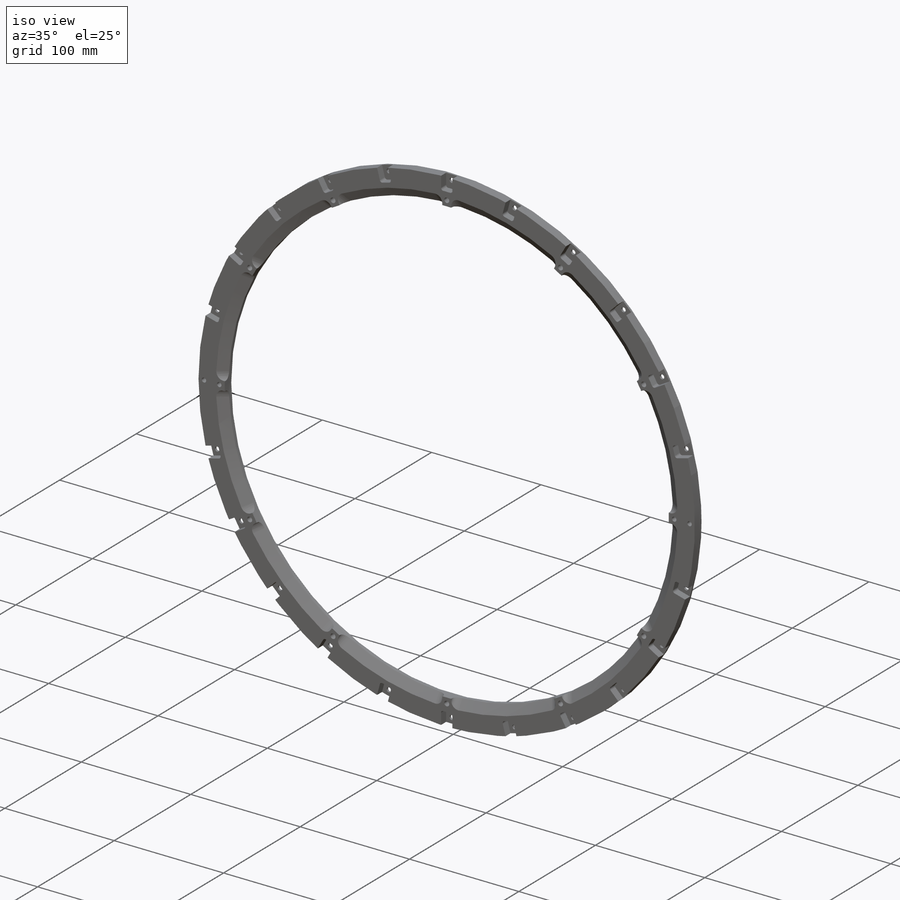
[diagram: iso view]
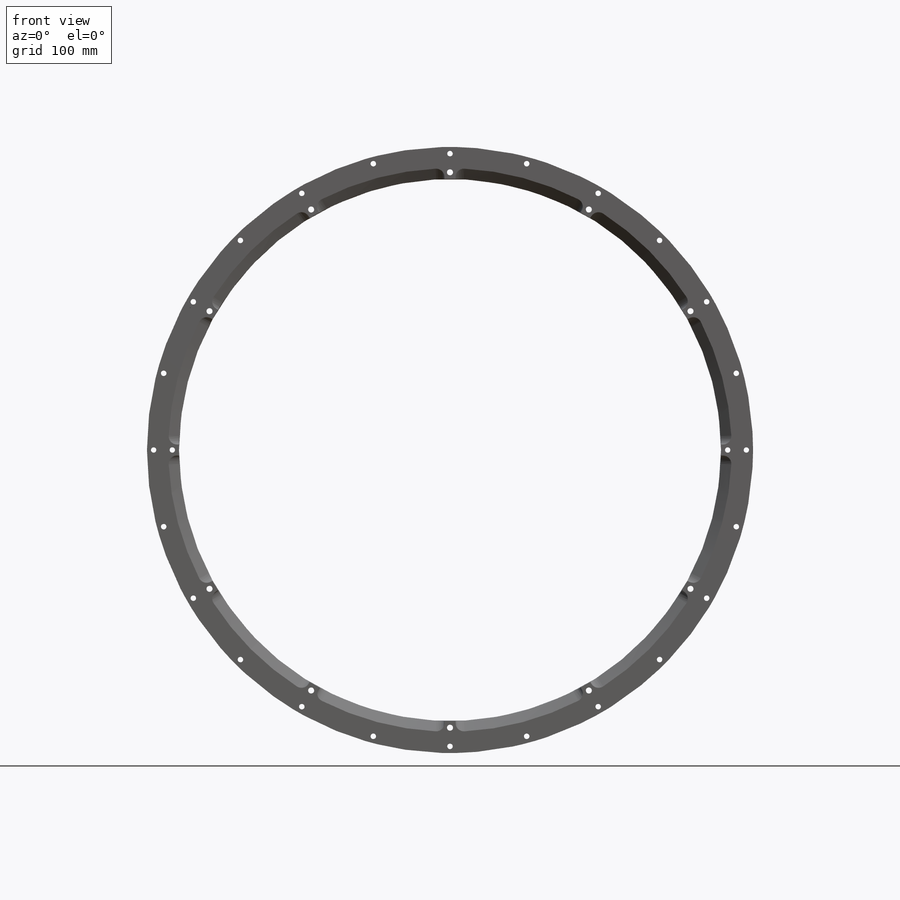
[diagram: front view]
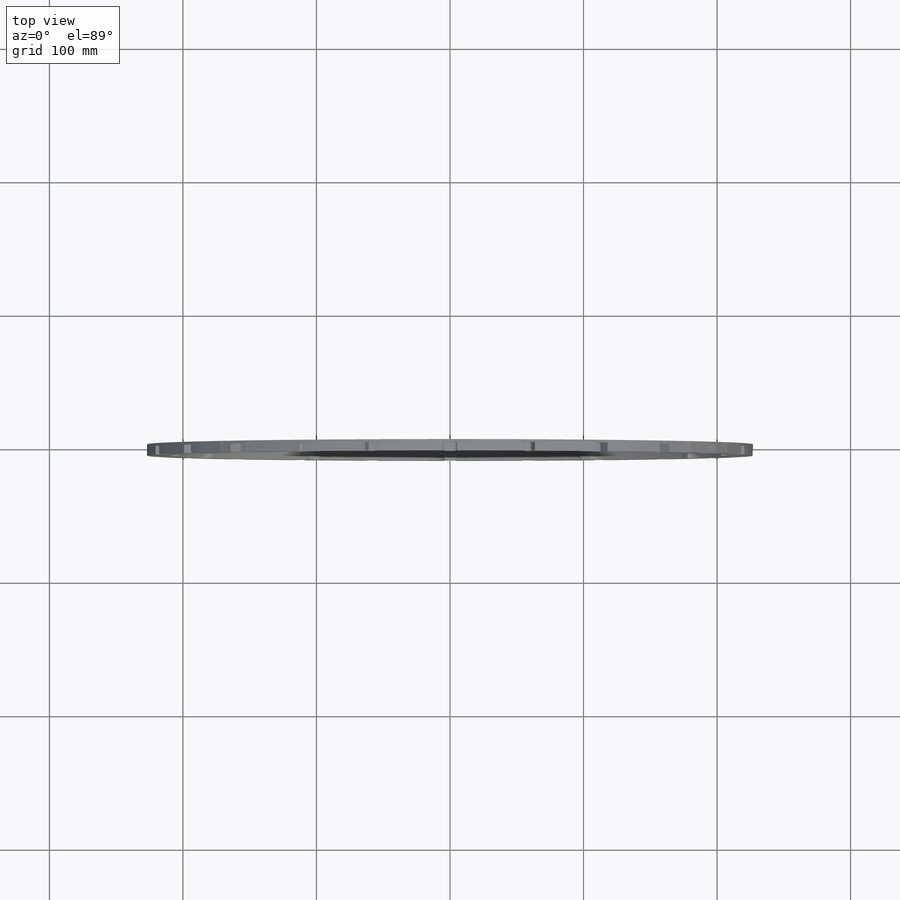
[diagram: top view]
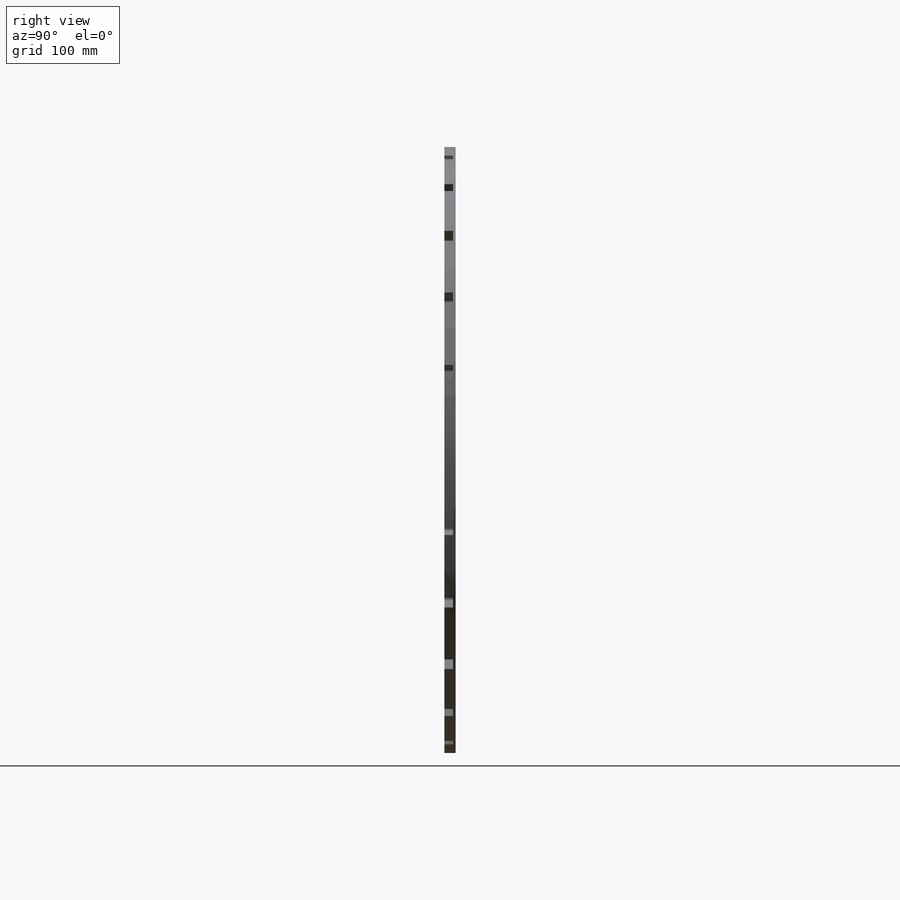
[diagram: right view]
SOLIDWORKS PART (.sldprt)
format: sldprt  version: not decoded by parser v0  size: 2,532,352 bytes
history: native  units: mm
features: sketch x15, pattern_circular x5, extrude x4, cut_extrude x4, hole x2, sweep x2, material x1, plane x1, cut_revolve x1, boolean_combine x1 (+11 scaffold rows collapsed)
feature tree (47):
  scaffold x11  (default folders/planes/origin — collapsed)
  material  "Material <not specified>"
  sketch  "Sketch1"  dims[D1=454.0mm D2=10.0mm]
  extrude  "Extrude1"  Depth=8.5mm
  sketch  "Sketch3"  dims[c1.D2=~208.346211mm c1.D4=10.0mm c1.D1=~217.999087mm c2.D1=18.0deg c2.D2=24.0mm c2.D3=227.0mm c3.D3=15.0deg c3.ModelUUID=0.0mm c3.UUID=0.0mm c4.ModelUUID=0.0mm]
  cut_extrude  "Extrude2"  [1 undecoded]
  pattern_circular  "CirPattern1"  Count=10 Angle=36deg
  hole  "M4 Clearance Hole1"  Diameter=4.1mm Depth=8.5mm
  sketch  "Sketch5"  dims[D1=222.0mm]
  sketch  "Sketch6"  dims[hole-wizard template sketch: 60 standard entries collapsed; hole parameters kept: c18.Thru Hole Depth=8.5mm]
  hole  "M4 Clearance Hole2"  Diameter=4.5mm Depth=8.5mm
  sketch  "Sketch9"  dims[D1=208.0mm]
  sketch  "Sketch8"  dims[hole-wizard template sketch: 60 standard entries collapsed; hole parameters kept: c18.Thru Hole Depth=8.5mm]
  pattern_circular  "CirPattern2"  Count=24 Angle=360deg
  sketch  "Sketch7"  dims[D3=2.0mm D1=10.3mm D2=5.0mm D4=15.0mm]
  cut_extrude  "Cut-Extrude1"  Depth=4mm
  pattern_circular  "CirPattern3"  Count=24 Angle=360deg
  sketch  "Sketch10"  dims[D1=4.0mm]
  extrude  "Boss-Extrude1"  [1 undecoded]
  sketch  "Sketch11"  dims[D1=406.0mm]
  cut_extrude  "Cut-Extrude2"  [1 undecoded]
  sketch  "Sketch12"
  extrude  "Boss-Extrude3"  [1 undecoded]
  plane  "Plane1"
  sketch  "Sketch13"  dims[c1.D1=8.0mm c1.D2=~6.302198mm c2.D2=45.0deg c3.D2=5.5mm c3.D3=3.0mm c3.D4=5.5mm c4.D4=~55.491477deg]
  cut_revolve  "Cut-Revolve1"  Angle=13.85deg
  pattern_circular  "CirPattern4"  Count=12 Angle=30deg
  sketch  "Sketch14"  dims[D1=6.35mm]
  sketch  "Sketch16"
  sweep  "Sweep3"
  sweep  "Sweep4"
  pattern_circular  "CirPattern5"  Count=12 Angle=30deg
  boolean_combine  "Combine1"
  sketch  "Sketch17"
  cut_extrude  "Cut-Extrude4"  [1 undecoded]
  sketch  "Sketch18"
  extrude  "Boss-Extrude5"  [1 undecoded]
decode coverage: 21 of 34 modeling features carry decoded parameters
note: ~ marks probable driven/reference dimensions
note: 6 parameter values undecoded
summary: no parameter record found for 6 features
note: suppression state not decoded; provenance and decode notes live in map.json
